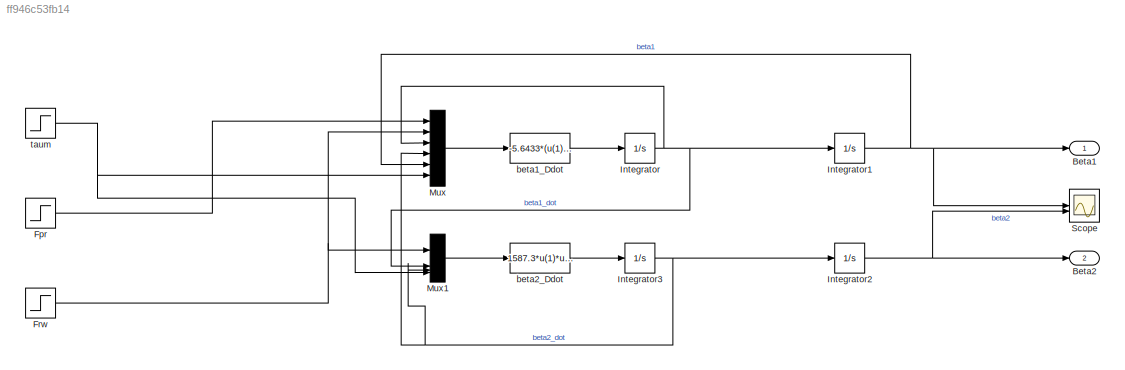
MODEL slx_ff946c53fb14
KIND model
CONFIG AbsTol = auto
CONFIG EnableMultiTasking = off
CONFIG FixedStep = auto
CONFIG MaxStep = auto
CONFIG MinStep = auto
CONFIG RelTol = 1e-3
CONFIG SampleTimeConstraint = Unconstrained
CONFIG SolverName = VariableStepAuto
CONFIG StartTime = 0.0
CONFIG StopTime = 10
BLOCK [Outport] Beta1
BLOCK [Outport] Beta2
  Port = 2
BLOCK [Step] Fpr
  After = 0
  Before = 1
  SampleTime = 0.3
BLOCK [Step] Frw
  After = 0
  Before = 1
  SampleTime = 0.3
BLOCK [Integrator] Integrator
  ContinuousStateAttributes = "beta1_dot"
  LimitOutput = on
  LowerSaturationLimit = -pi/2
  UpperSaturationLimit = pi/2
BLOCK [Integrator] Integrator1
  ContinuousStateAttributes = "beta1"
  LowerSaturationLimit = -pi/2
  UpperSaturationLimit = pi/2
BLOCK [Integrator] Integrator2
  ContinuousStateAttributes = "beta2"
  LowerSaturationLimit = 0
  UpperSaturationLimit = 2*pi
BLOCK [Integrator] Integrator3
  ContinuousStateAttributes = "beta2_dot"
  LimitOutput = on
  LowerSaturationLimit = 0
  UpperSaturationLimit = 2*pi
BLOCK [Mux] Mux
  DisplayOption = bar
  Inputs = 6
BLOCK [Mux] Mux1
  DisplayOption = bar
BLOCK [Scope] Scope
  Floating = off
  NumInputPorts = 2
  ScopeSpecificationString = Simulink.scopes.TimeScopeBlockCfg('CurrentConfiguration', extmgr.ConfigurationSet(extmgr.Configuration('Core','General UI',true),extmgr.Configuration('Core','Source UI',true),extmgr.Configuration('Sources','WiredSimulink',true,'SampleTime','0.3'),extmgr.Configuration('Visuals','Time Domain',true,'SerializedDisplays',{struct('MinYLimReal','-0.48081','MaxYLimReal','2.28217','YLabelReal','','MinYLimM...<+1593ch>
BLOCK [Fcn] beta1_Ddot
  Expr = -5.6433*(u(1)+u(2))*u(3) + 5.6433*u(4) - 94.7754*u(5) -5.6433*u(6)
BLOCK [Fcn] beta2_Ddot
  Expr = 1587.3*u(1)*u(2) - 1587.3*u(1)*u(3) + 1587.3*u(4)
BLOCK [Step] taum
  SampleTime = 0
LINE Fpr:1 -> Mux:1
NET Frw:1 -> Mux1:1, Mux:2
NET Integrator1:1 -> Beta1:1, Mux:5, Scope:1
NET Integrator2:1 -> Beta2:1, Scope:2
NET Integrator3:1 -> Integrator2:1, Mux1:3, Mux:4
NET Integrator:1 -> Integrator1:1, Mux1:2, Mux:3
LINE Mux1:1 -> beta2_Ddot:1
LINE Mux:1 -> beta1_Ddot:1
LINE beta1_Ddot:1 -> Integrator:1
LINE beta2_Ddot:1 -> Integrator3:1
NET taum:1 -> Mux1:4, Mux:6
note: NET lines group one-source signal fan-out (src -> all destinations, sorted); 1:1 wires keep LINE
